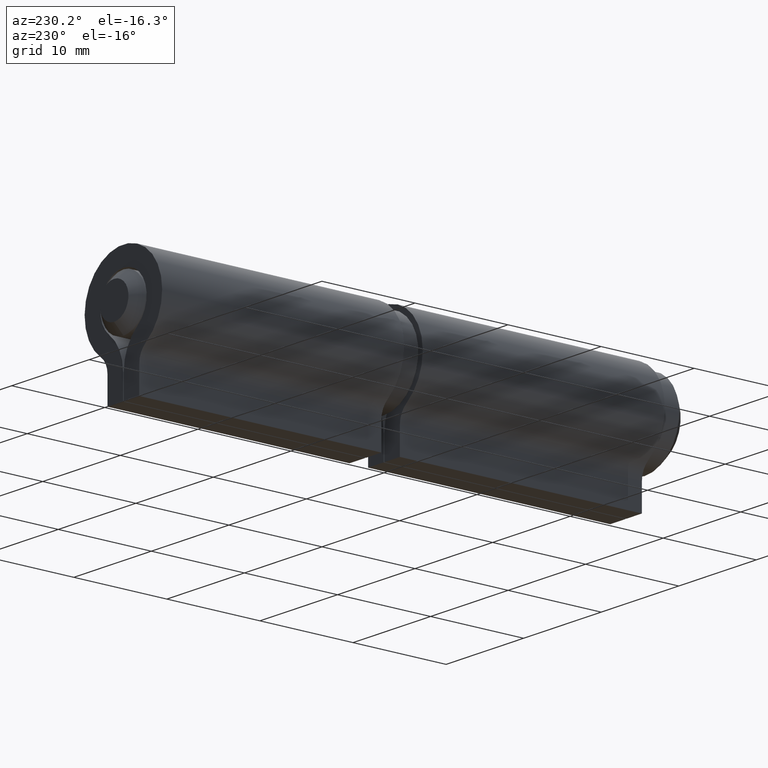
[diagram: clean part render]
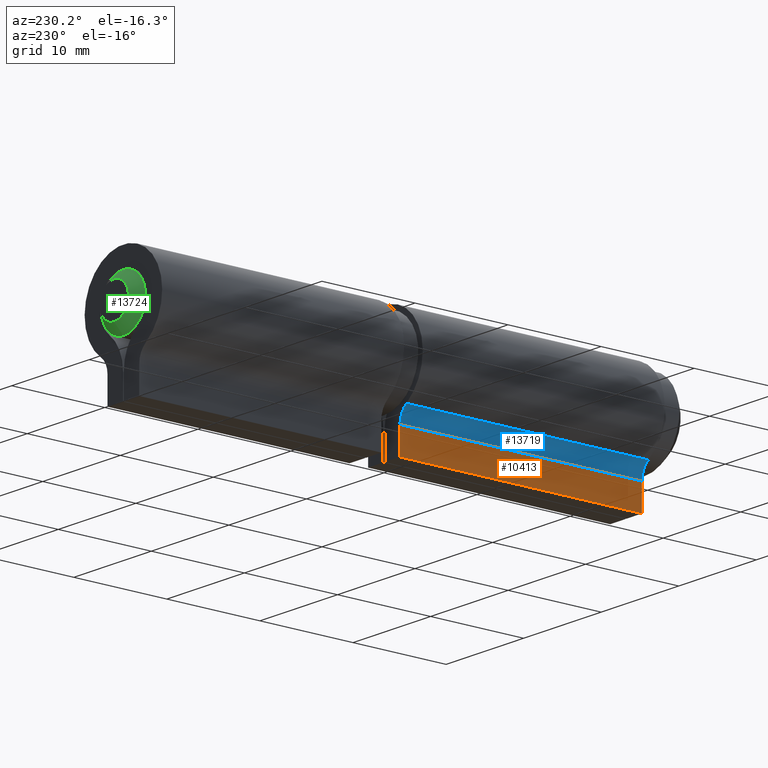
[diagram: same view with three faces highlighted in distinct colors, each labeled with its STEP entity id]
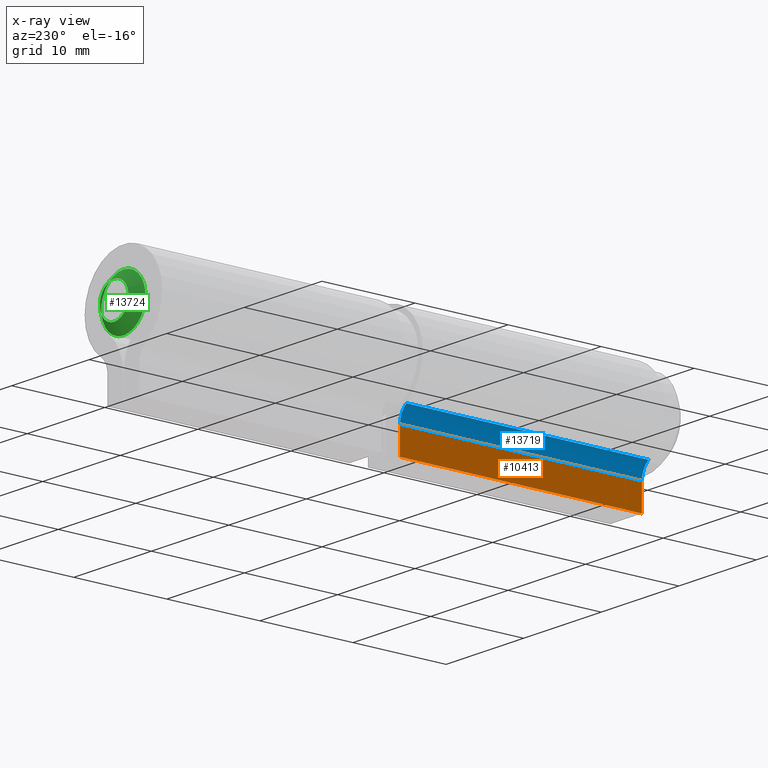
[diagram: x-ray of the same camera — body ghosted, the three highlighted faces saturated]
A machine part, auxiliary view with three faces highlighted in distinct colors.
The next image is the same camera in x-ray (body ghosted, the three faces saturated) — at least one of them is partly hidden behind the body in this view.
Their STEP definitions:

[orange] entity #10413 — the highlighted planar face has unit normal (1, 0, -0).
#735 = VERTEX_POINT ( 'NONE', #11712 ) ;
#1021 = CARTESIAN_POINT ( 'NONE',  ( -2.049999999999999378, 13.00000000000000000, -8.500000000000000000 ) ) ;
#1073 = CARTESIAN_POINT ( 'NONE',  ( -2.049999999999999378, 13.00000000000000000, -8.500000000000000000 ) ) ;
#1245 = ORIENTED_EDGE ( 'NONE', *, *, #13709, .T. ) ;
#1266 = PLANE ( 'NONE',  #12562 ) ;
#1984 = EDGE_LOOP ( 'NONE', ( #1245, #3072, #10637, #4840 ) ) ;
#2399 = DIRECTION ( 'NONE',  ( -1.554089779217290401E-16, 0.000000000000000000, -1.000000000000000000 ) ) ;
#2988 = VECTOR ( 'NONE', #4485, 1000.000000000000000 ) ;
#3006 = CARTESIAN_POINT ( 'NONE',  ( -2.049999999999999822, 13.00000000000000000, -5.709422037299396457 ) ) ;
#3072 = ORIENTED_EDGE ( 'NONE', *, *, #12126, .F. ) ;
#3865 = CARTESIAN_POINT ( 'NONE',  ( -2.049999999999999822, -12.99999999999999822, -5.709422037299396457 ) ) ;
#4386 = DIRECTION ( 'NONE',  ( -0.000000000000000000, -1.000000000000000000, -0.000000000000000000 ) ) ;
#4485 = DIRECTION ( 'NONE',  ( 1.554089779217290401E-16, 0.000000000000000000, 1.000000000000000000 ) ) ;
#4840 = ORIENTED_EDGE ( 'NONE', *, *, #11598, .T. ) ;
#5680 = VERTEX_POINT ( 'NONE', #3865 ) ;
#5819 = LINE ( 'NONE', #1021, #2988 ) ;
#6527 = CARTESIAN_POINT ( 'NONE',  ( -2.049999999999999378, 13.00000000000000000, -8.500000000000000000 ) ) ;
#6671 = DIRECTION ( 'NONE',  ( 1.554089779217290401E-16, 0.000000000000000000, 1.000000000000000000 ) ) ;
#6722 = CARTESIAN_POINT ( 'NONE',  ( -2.049999999999999378, -12.99999999999999822, -8.500000000000000000 ) ) ;
#7050 = FACE_OUTER_BOUND ( 'NONE', #1984, .T. ) ;
#7689 = VECTOR ( 'NONE', #6671, 1000.000000000000000 ) ;
#8403 = CARTESIAN_POINT ( 'NONE',  ( -2.049999999999999822, 13.00000000000000000, -5.709422037299396457 ) ) ;
#8969 = VECTOR ( 'NONE', #11933, 1000.000000000000000 ) ;
#8985 = LINE ( 'NONE', #1073, #13058 ) ;
#9370 = CARTESIAN_POINT ( 'NONE',  ( -2.049999999999999378, 13.00000000000000000, -8.500000000000000000 ) ) ;
#9869 = LINE ( 'NONE', #8403, #8969 ) ;
#10217 = EDGE_CURVE ( 'NONE', #13064, #12906, #5819, .T. ) ;
#10381 = DIRECTION ( 'NONE',  ( 1.000000000000000000, 0.000000000000000000, -1.554089779217290401E-16 ) ) ;
#10413 = ADVANCED_FACE ( 'NONE', ( #7050 ), #1266, .F. ) ;
#10637 = ORIENTED_EDGE ( 'NONE', *, *, #10217, .F. ) ;
#11598 = EDGE_CURVE ( 'NONE', #13064, #735, #8985, .T. ) ;
#11602 = LINE ( 'NONE', #6722, #7689 ) ;
#11712 = CARTESIAN_POINT ( 'NONE',  ( -2.049999999999999378, -12.99999999999999822, -8.500000000000000000 ) ) ;
#11933 = DIRECTION ( 'NONE',  ( -0.000000000000000000, -1.000000000000000000, -0.000000000000000000 ) ) ;
#12126 = EDGE_CURVE ( 'NONE', #12906, #5680, #9869, .T. ) ;
#12562 = AXIS2_PLACEMENT_3D ( 'NONE', #9370, #10381, #2399 ) ;
#12906 = VERTEX_POINT ( 'NONE', #3006 ) ;
#13058 = VECTOR ( 'NONE', #4386, 1000.000000000000000 ) ;
#13064 = VERTEX_POINT ( 'NONE', #6527 ) ;
#13709 = EDGE_CURVE ( 'NONE', #735, #5680, #11602, .T. ) ;

[blue] entity #13719 — the highlighted cylindrical surface (edge-blend (fillet) strip) has radius 2 mm, axis along (-0, -1, -0).
#105 = DIRECTION ( 'NONE',  ( -0.000000000000000000, -1.000000000000000000, 0.000000000000000000 ) ) ;
#323 = EDGE_LOOP ( 'NONE', ( #2332, #11314, #13189, #6242 ) ) ;
#522 = CARTESIAN_POINT ( 'NONE',  ( -2.892857142857141461, 13.00000000000000000, -4.078158598070999119 ) ) ;
#990 = VECTOR ( 'NONE', #2750, 1000.000000000000000 ) ;
#1361 = CIRCLE ( 'NONE', #9455, 2.000000000000000000 ) ;
#2332 = ORIENTED_EDGE ( 'NONE', *, *, #9053, .T. ) ;
#2750 = DIRECTION ( 'NONE',  ( -0.000000000000000000, -1.000000000000000000, -0.000000000000000000 ) ) ;
#2823 = EDGE_CURVE ( 'NONE', #12906, #6912, #1361, .T. ) ;
#3006 = CARTESIAN_POINT ( 'NONE',  ( -2.049999999999999822, 13.00000000000000000, -5.709422037299396457 ) ) ;
#3865 = CARTESIAN_POINT ( 'NONE',  ( -2.049999999999999822, -12.99999999999999822, -5.709422037299396457 ) ) ;
#4114 = CIRCLE ( 'NONE', #5069, 2.000000000000000000 ) ;
#4860 = CYLINDRICAL_SURFACE ( 'NONE', #10111, 2.000000000000000000 ) ;
#5069 = AXIS2_PLACEMENT_3D ( 'NONE', #11353, #105, #8023 ) ;
#5680 = VERTEX_POINT ( 'NONE', #3865 ) ;
#6242 = ORIENTED_EDGE ( 'NONE', *, *, #12126, .T. ) ;
#6645 = LINE ( 'NONE', #522, #990 ) ;
#6912 = VERTEX_POINT ( 'NONE', #12198 ) ;
#7459 = VERTEX_POINT ( 'NONE', #9503 ) ;
#7520 = CARTESIAN_POINT ( 'NONE',  ( -4.049999999999999822, 13.00000000000000000, -5.709422037299396457 ) ) ;
#8023 = DIRECTION ( 'NONE',  ( 0.000000000000000000, 0.000000000000000000, -1.000000000000000000 ) ) ;
#8403 = CARTESIAN_POINT ( 'NONE',  ( -2.049999999999999822, 13.00000000000000000, -5.709422037299396457 ) ) ;
#8969 = VECTOR ( 'NONE', #11933, 1000.000000000000000 ) ;
#9053 = EDGE_CURVE ( 'NONE', #5680, #7459, #4114, .T. ) ;
#9455 = AXIS2_PLACEMENT_3D ( 'NONE', #7520, #10965, #9814 ) ;
#9503 = CARTESIAN_POINT ( 'NONE',  ( -2.892857142857141461, -12.99999999999999822, -4.078158598070999119 ) ) ;
#9814 = DIRECTION ( 'NONE',  ( 0.000000000000000000, 0.000000000000000000, -1.000000000000000000 ) ) ;
#9869 = LINE ( 'NONE', #8403, #8969 ) ;
#10111 = AXIS2_PLACEMENT_3D ( 'NONE', #13501, #14451, #12250 ) ;
#10965 = DIRECTION ( 'NONE',  ( -0.000000000000000000, -1.000000000000000000, 0.000000000000000000 ) ) ;
#11314 = ORIENTED_EDGE ( 'NONE', *, *, #13977, .F. ) ;
#11353 = CARTESIAN_POINT ( 'NONE',  ( -4.049999999999999822, -12.99999999999999822, -5.709422037299396457 ) ) ;
#11933 = DIRECTION ( 'NONE',  ( -0.000000000000000000, -1.000000000000000000, -0.000000000000000000 ) ) ;
#12126 = EDGE_CURVE ( 'NONE', #12906, #5680, #9869, .T. ) ;
#12198 = CARTESIAN_POINT ( 'NONE',  ( -2.892857142857141461, 13.00000000000000000, -4.078158598070999119 ) ) ;
#12250 = DIRECTION ( 'NONE',  ( 0.000000000000000000, 0.000000000000000000, -1.000000000000000000 ) ) ;
#12906 = VERTEX_POINT ( 'NONE', #3006 ) ;
#13189 = ORIENTED_EDGE ( 'NONE', *, *, #2823, .F. ) ;
#13380 = FACE_OUTER_BOUND ( 'NONE', #323, .T. ) ;
#13501 = CARTESIAN_POINT ( 'NONE',  ( -4.049999999999999822, 13.00000000000000000, -5.709422037299396457 ) ) ;
#13719 = ADVANCED_FACE ( 'NONE', ( #13380 ), #4860, .F. ) ;
#13977 = EDGE_CURVE ( 'NONE', #6912, #7459, #6645, .T. ) ;
#14451 = DIRECTION ( 'NONE',  ( -0.000000000000000000, -1.000000000000000000, -0.000000000000000000 ) ) ;

[green] entity #13724 — the highlighted conical surface has half-angle 45 deg.
#79 = VERTEX_POINT ( 'NONE', #10139 ) ;
#380 = DIRECTION ( 'NONE',  ( 0.000000000000000000, 0.000000000000000000, -1.000000000000000000 ) ) ;
#868 = AXIS2_PLACEMENT_3D ( 'NONE', #7151, #3908, #1629 ) ;
#1480 = CARTESIAN_POINT ( 'NONE',  ( 3.469446951953614189E-15, 28.99999999999999645, 0.000000000000000000 ) ) ;
#1629 = DIRECTION ( 'NONE',  ( 0.000000000000000000, 0.000000000000000000, -1.000000000000000000 ) ) ;
#2161 = CARTESIAN_POINT ( 'NONE',  ( 3.469446951953614189E-15, 28.99999999999999645, -1.850000000000004530 ) ) ;
#2739 = CIRCLE ( 'NONE', #868, 2.850000000000001421 ) ;
#3254 = DIRECTION ( 'NONE',  ( 0.000000000000000000, -1.000000000000000000, 0.000000000000000000 ) ) ;
#3439 = VERTEX_POINT ( 'NONE', #2161 ) ;
#3908 = DIRECTION ( 'NONE',  ( 0.000000000000000000, -1.000000000000000000, 0.000000000000000000 ) ) ;
#5237 = ORIENTED_EDGE ( 'NONE', *, *, #7607, .F. ) ;
#5576 = FACE_OUTER_BOUND ( 'NONE', #10345, .T. ) ;
#5706 = ORIENTED_EDGE ( 'NONE', *, *, #14467, .F. ) ;
#6043 = CIRCLE ( 'NONE', #7306, 1.850000000000004530 ) ;
#6780 = AXIS2_PLACEMENT_3D ( 'NONE', #7743, #3254, #8789 ) ;
#7151 = CARTESIAN_POINT ( 'NONE',  ( 3.469446951953614189E-15, 27.99999999999999645, 0.000000000000000000 ) ) ;
#7306 = AXIS2_PLACEMENT_3D ( 'NONE', #1480, #9397, #380 ) ;
#7341 = FACE_BOUND ( 'NONE', #10804, .T. ) ;
#7607 = EDGE_CURVE ( 'NONE', #3439, #3439, #6043, .T. ) ;
#7743 = CARTESIAN_POINT ( 'NONE',  ( 3.469446951953614189E-15, 28.99999999999999645, 0.000000000000000000 ) ) ;
#8789 = DIRECTION ( 'NONE',  ( 0.000000000000000000, 0.000000000000000000, -1.000000000000000000 ) ) ;
#9397 = DIRECTION ( 'NONE',  ( -0.000000000000000000, 1.000000000000000000, -0.000000000000000000 ) ) ;
#10139 = CARTESIAN_POINT ( 'NONE',  ( 3.469446951953614189E-15, 27.99999999999999645, -2.850000000000001421 ) ) ;
#10345 = EDGE_LOOP ( 'NONE', ( #5706 ) ) ;
#10804 = EDGE_LOOP ( 'NONE', ( #5237 ) ) ;
#13175 = CONICAL_SURFACE ( 'NONE', #6780, 1.850000000000004530, 0.7853981633974463916 ) ;
#13724 = ADVANCED_FACE ( 'NONE', ( #5576, #7341 ), #13175, .T. ) ;
#14467 = EDGE_CURVE ( 'NONE', #79, #79, #2739, .T. ) ;